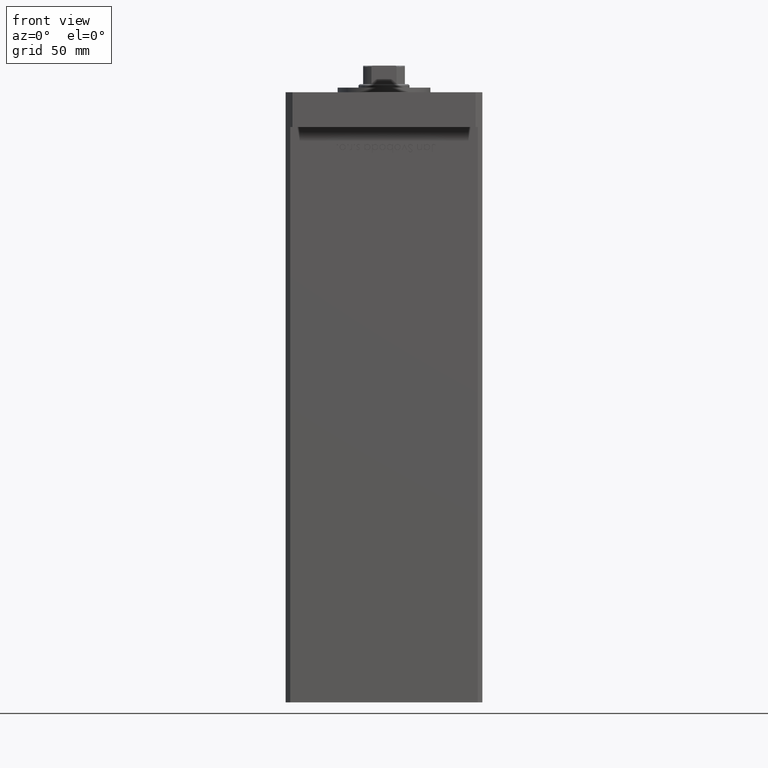
[diagram: clean part render]
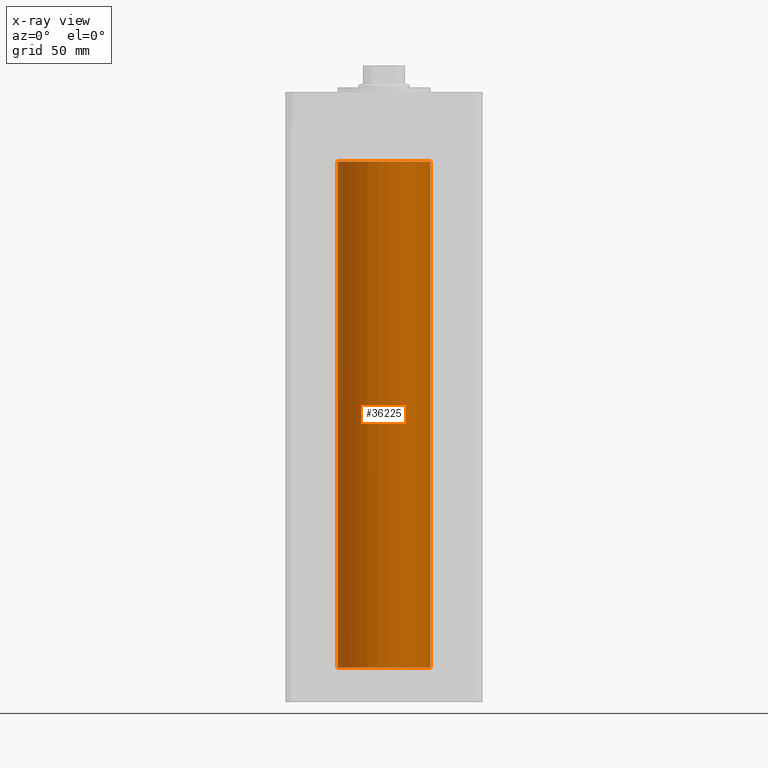
[diagram: x-ray — body ghosted, one internal face saturated and labeled with its STEP entity id]
A machine part, front view, then the same camera in x-ray: the body is ghosted and one INTERNAL B-rep face — a face not visible from any outside direction — is saturated and labeled: STEP entity #36225.
In plain terms, the highlighted cylindrical surface (partial cylindrical patch) has radius 20 mm, axis along (-0, -0, -1).
Its self-contained STEP definition (entity closure, byte-faithful):
#371 = CARTESIAN_POINT ( 'NONE',  ( 0.000000000000000000, 0.000000000000000000, 218.5000000000000000 ) ) ;
#4389 = CYLINDRICAL_SURFACE ( 'NONE', #26025, 20.00000000000000000 ) ;
#5115 = LINE ( 'NONE', #50603, #12778 ) ;
#8118 = VERTEX_POINT ( 'NONE', #37986 ) ;
#11509 = LINE ( 'NONE', #27767, #28276 ) ;
#12239 = EDGE_LOOP ( 'NONE', ( #45466, #50871, #18888, #14769 ) ) ;
#12455 = DIRECTION ( 'NONE',  ( -0.000000000000000000, -0.000000000000000000, -1.000000000000000000 ) ) ;
#12778 = VECTOR ( 'NONE', #12455, 1000.000000000000000 ) ;
#12853 = DIRECTION ( 'NONE',  ( 1.000000000000000000, 0.000000000000000000, 0.000000000000000000 ) ) ;
#14769 = ORIENTED_EDGE ( 'NONE', *, *, #21467, .F. ) ;
#16117 = DIRECTION ( 'NONE',  ( -0.000000000000000000, 0.000000000000000000, 1.000000000000000000 ) ) ;
#17140 = CIRCLE ( 'NONE', #22317, 20.00000000000000000 ) ;
#17220 = CARTESIAN_POINT ( 'NONE',  ( -20.00000000000000000, 0.000000000000000000, 218.5000000000000000 ) ) ;
#18888 = ORIENTED_EDGE ( 'NONE', *, *, #22244, .F. ) ;
#20903 = CARTESIAN_POINT ( 'NONE',  ( 0.000000000000000000, 0.000000000000000000, 218.5000000000000000 ) ) ;
#21467 = EDGE_CURVE ( 'NONE', #37635, #8118, #5115, .T. ) ;
#22015 = EDGE_CURVE ( 'NONE', #37635, #31639, #17140, .T. ) ;
#22244 = EDGE_CURVE ( 'NONE', #8118, #31066, #44822, .T. ) ;
#22317 = AXIS2_PLACEMENT_3D ( 'NONE', #371, #16117, #12853 ) ;
#23176 = AXIS2_PLACEMENT_3D ( 'NONE', #26367, #51018, #47212 ) ;
#24973 = FACE_OUTER_BOUND ( 'NONE', #12239, .T. ) ;
#26025 = AXIS2_PLACEMENT_3D ( 'NONE', #20903, #36629, #37433 ) ;
#26367 = CARTESIAN_POINT ( 'NONE',  ( 0.000000000000000000, 0.000000000000000000, 0.000000000000000000 ) ) ;
#27767 = CARTESIAN_POINT ( 'NONE',  ( 20.00000000000000000, 2.449293598294706513E-15, 218.5000000000000000 ) ) ;
#28276 = VECTOR ( 'NONE', #48611, 1000.000000000000000 ) ;
#31066 = VERTEX_POINT ( 'NONE', #47430 ) ;
#31639 = VERTEX_POINT ( 'NONE', #49390 ) ;
#36225 = ADVANCED_FACE ( 'NONE', ( #24973 ), #4389, .F. ) ;
#36629 = DIRECTION ( 'NONE',  ( -0.000000000000000000, -0.000000000000000000, -1.000000000000000000 ) ) ;
#37433 = DIRECTION ( 'NONE',  ( -1.000000000000000000, 0.000000000000000000, 0.000000000000000000 ) ) ;
#37635 = VERTEX_POINT ( 'NONE', #17220 ) ;
#37986 = CARTESIAN_POINT ( 'NONE',  ( -20.00000000000000000, 0.000000000000000000, 0.000000000000000000 ) ) ;
#44822 = CIRCLE ( 'NONE', #23176, 20.00000000000000000 ) ;
#45466 = ORIENTED_EDGE ( 'NONE', *, *, #22015, .T. ) ;
#47212 = DIRECTION ( 'NONE',  ( 1.000000000000000000, 0.000000000000000000, 0.000000000000000000 ) ) ;
#47430 = CARTESIAN_POINT ( 'NONE',  ( 20.00000000000000000, 2.449293598294706513E-15, 0.000000000000000000 ) ) ;
#48611 = DIRECTION ( 'NONE',  ( -0.000000000000000000, -0.000000000000000000, -1.000000000000000000 ) ) ;
#49390 = CARTESIAN_POINT ( 'NONE',  ( 20.00000000000000000, 2.449293598294706513E-15, 218.5000000000000000 ) ) ;
#49459 = EDGE_CURVE ( 'NONE', #31639, #31066, #11509, .T. ) ;
#50603 = CARTESIAN_POINT ( 'NONE',  ( -20.00000000000000000, 0.000000000000000000, 218.5000000000000000 ) ) ;
#50871 = ORIENTED_EDGE ( 'NONE', *, *, #49459, .T. ) ;
#51018 = DIRECTION ( 'NONE',  ( -0.000000000000000000, 0.000000000000000000, 1.000000000000000000 ) ) ;